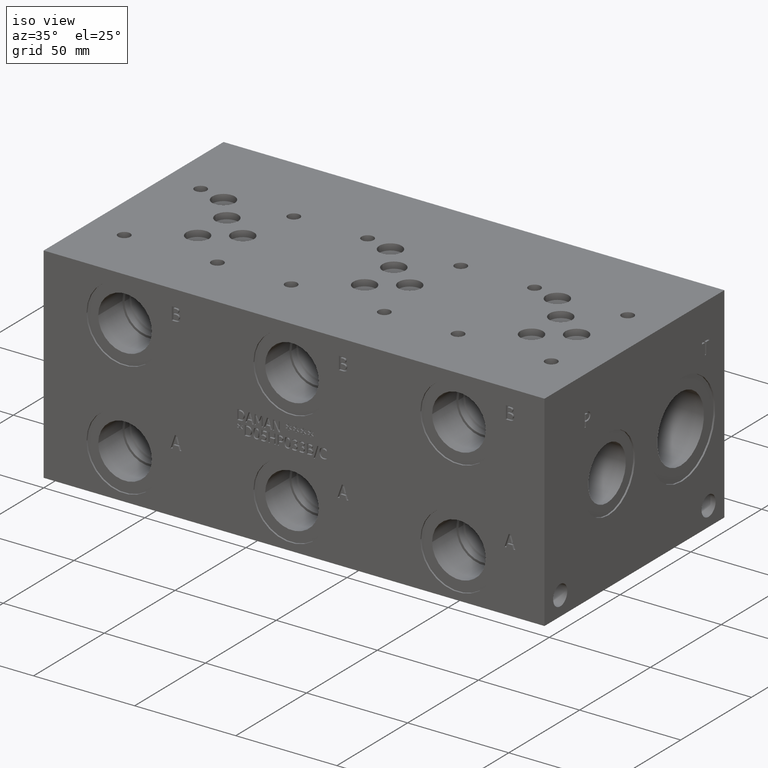
[diagram: clean part render]
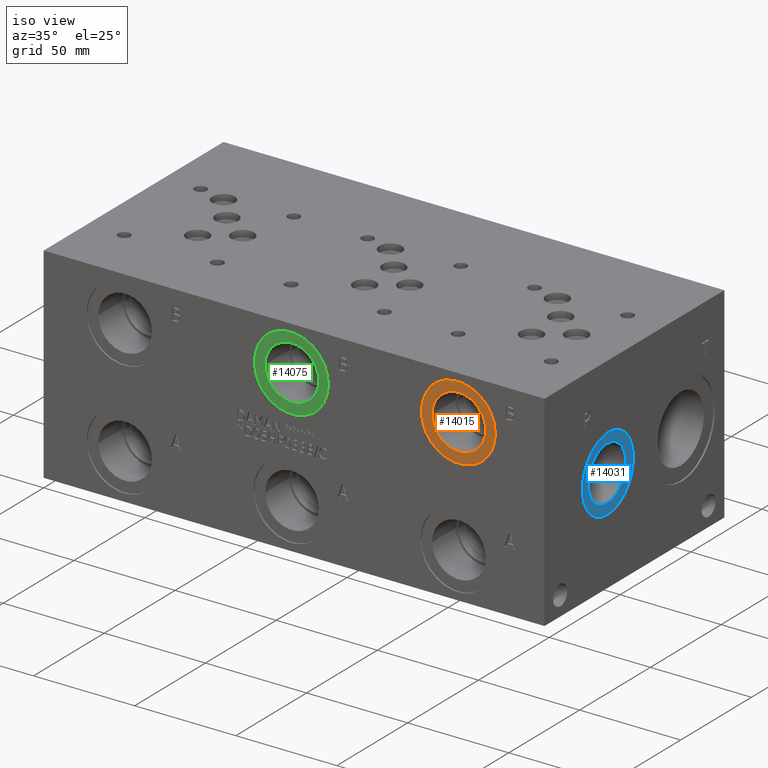
[diagram: same view with three faces highlighted in distinct colors, each labeled with its STEP entity id]
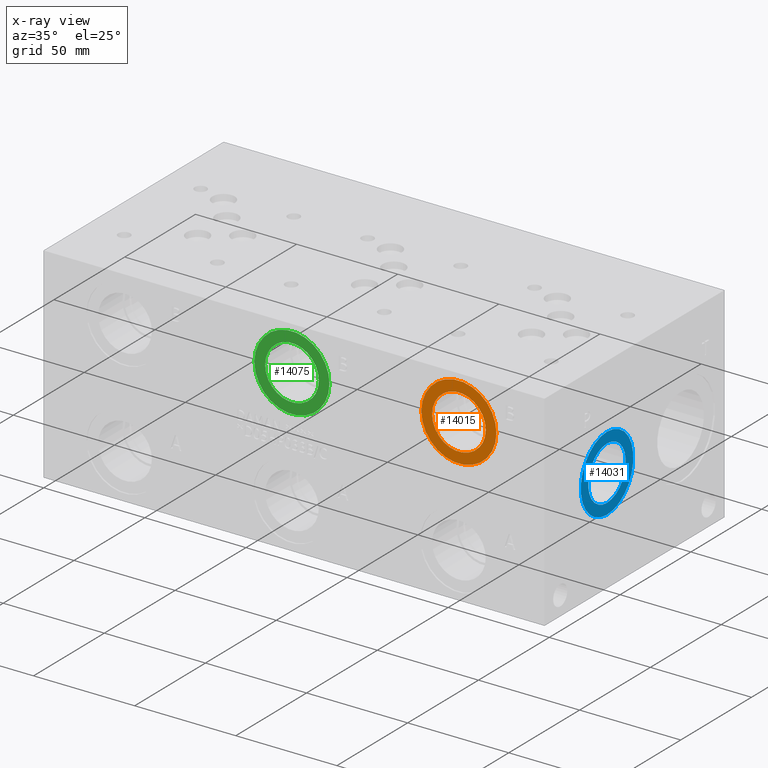
[diagram: x-ray of the same camera — body ghosted, the three highlighted faces saturated]
A machine part, iso view with three faces highlighted in distinct colors.
The next image is the same camera in x-ray (body ghosted, the three faces saturated) — at least one of them is partly hidden behind the body in this view.
Their STEP definitions:

[orange] entity #14015 — the highlighted planar face has unit normal (0, 1, 0).
#409=CIRCLE('',#14635,18.5547);
#410=CIRCLE('',#14636,18.5547);
#411=CIRCLE('',#14638,13.2715);
#412=CIRCLE('',#14639,13.2715);
#1127=FACE_BOUND('',#2545,.T.);
#1747=FACE_OUTER_BOUND('',#2544,.T.);
#2544=EDGE_LOOP('',(#11672,#11673));
#2545=EDGE_LOOP('',(#11674,#11675));
#6326=VERTEX_POINT('',#23699);
#6327=VERTEX_POINT('',#23701);
#6328=VERTEX_POINT('',#23705);
#6329=VERTEX_POINT('',#23706);
#8200=EDGE_CURVE('',#6326,#6327,#409,.T.);
#8201=EDGE_CURVE('',#6327,#6326,#410,.T.);
#8202=EDGE_CURVE('',#6328,#6329,#411,.T.);
#8203=EDGE_CURVE('',#6329,#6328,#412,.T.);
#11672=ORIENTED_EDGE('',*,*,#8201,.F.);
#11673=ORIENTED_EDGE('',*,*,#8200,.F.);
#11674=ORIENTED_EDGE('',*,*,#8202,.T.);
#11675=ORIENTED_EDGE('',*,*,#8203,.T.);
#12892=PLANE('',#14637);
#14015=ADVANCED_FACE('',(#1747,#1127),#12892,.F.);
#14635=AXIS2_PLACEMENT_3D('',#23702,#17079,#17080);
#14636=AXIS2_PLACEMENT_3D('',#23703,#17081,#17082);
#14637=AXIS2_PLACEMENT_3D('',#23704,#17083,#17084);
#14638=AXIS2_PLACEMENT_3D('',#23707,#17085,#17086);
#14639=AXIS2_PLACEMENT_3D('',#23708,#17087,#17088);
#17079=DIRECTION('center_axis',(0.,1.,0.));
#17080=DIRECTION('ref_axis',(1.,0.,0.));
#17081=DIRECTION('center_axis',(0.,1.,0.));
#17082=DIRECTION('ref_axis',(1.,0.,0.));
#17083=DIRECTION('center_axis',(0.,1.,0.));
#17084=DIRECTION('ref_axis',(0.,0.,1.));
#17085=DIRECTION('center_axis',(0.,1.,0.));
#17086=DIRECTION('ref_axis',(1.,0.,0.));
#17087=DIRECTION('center_axis',(0.,1.,0.));
#17088=DIRECTION('ref_axis',(1.,0.,0.));
#23699=CARTESIAN_POINT('',(186.2201,0.7874,79.375));
#23701=CARTESIAN_POINT('',(223.3295,0.7874,79.375));
#23702=CARTESIAN_POINT('Origin',(204.7748,0.7874,79.375));
#23703=CARTESIAN_POINT('Origin',(204.7748,0.7874,79.375));
#23704=CARTESIAN_POINT('Origin',(218.0463,0.7874,79.375));
#23705=CARTESIAN_POINT('',(218.0463,0.7874,79.375));
#23706=CARTESIAN_POINT('',(191.5033,0.7874,79.375));
#23707=CARTESIAN_POINT('Origin',(204.7748,0.7874,79.375));
#23708=CARTESIAN_POINT('Origin',(204.7748,0.7874,79.375));

[blue] entity #14031 — the highlighted planar face has unit normal (-1, 0, 0).
#434=CIRCLE('',#14676,18.5547);
#435=CIRCLE('',#14677,18.5547);
#436=CIRCLE('',#14679,13.2715);
#437=CIRCLE('',#14680,13.2715);
#1131=FACE_BOUND('',#2565,.T.);
#1763=FACE_OUTER_BOUND('',#2564,.T.);
#2564=EDGE_LOOP('',(#11749,#11750));
#2565=EDGE_LOOP('',(#11751,#11752));
#6354=VERTEX_POINT('',#23780);
#6355=VERTEX_POINT('',#23782);
#6356=VERTEX_POINT('',#23786);
#6357=VERTEX_POINT('',#23787);
#8237=EDGE_CURVE('',#6354,#6355,#434,.T.);
#8238=EDGE_CURVE('',#6355,#6354,#435,.T.);
#8239=EDGE_CURVE('',#6356,#6357,#436,.T.);
#8240=EDGE_CURVE('',#6357,#6356,#437,.T.);
#11749=ORIENTED_EDGE('',*,*,#8238,.F.);
#11750=ORIENTED_EDGE('',*,*,#8237,.F.);
#11751=ORIENTED_EDGE('',*,*,#8239,.T.);
#11752=ORIENTED_EDGE('',*,*,#8240,.T.);
#12896=PLANE('',#14678);
#14031=ADVANCED_FACE('',(#1763,#1131),#12896,.F.);
#14676=AXIS2_PLACEMENT_3D('',#23783,#17173,#17174);
#14677=AXIS2_PLACEMENT_3D('',#23784,#17175,#17176);
#14678=AXIS2_PLACEMENT_3D('',#23785,#17177,#17178);
#14679=AXIS2_PLACEMENT_3D('',#23788,#17179,#17180);
#14680=AXIS2_PLACEMENT_3D('',#23789,#17181,#17182);
#17173=DIRECTION('center_axis',(-1.,0.,0.));
#17174=DIRECTION('ref_axis',(0.,0.,1.));
#17175=DIRECTION('center_axis',(-1.,0.,0.));
#17176=DIRECTION('ref_axis',(0.,0.,1.));
#17177=DIRECTION('center_axis',(-1.,0.,0.));
#17178=DIRECTION('ref_axis',(0.,0.,1.));
#17179=DIRECTION('center_axis',(-1.,0.,0.));
#17180=DIRECTION('ref_axis',(0.,0.,1.));
#17181=DIRECTION('center_axis',(-1.,0.,0.));
#17182=DIRECTION('ref_axis',(0.,0.,1.));
#23780=CARTESIAN_POINT('',(246.8626,45.2882,69.3547));
#23782=CARTESIAN_POINT('',(246.8626,45.2882,32.2453));
#23783=CARTESIAN_POINT('Origin',(246.8626,45.2882,50.8));
#23784=CARTESIAN_POINT('Origin',(246.8626,45.2882,50.8));
#23785=CARTESIAN_POINT('Origin',(246.8626,45.2882,37.5285));
#23786=CARTESIAN_POINT('',(246.8626,45.2882,37.5285));
#23787=CARTESIAN_POINT('',(246.8626,45.2882,64.0715));
#23788=CARTESIAN_POINT('Origin',(246.8626,45.2882,50.8));
#23789=CARTESIAN_POINT('Origin',(246.8626,45.2882,50.8));

[green] entity #14075 — the highlighted planar face has unit normal (0, 1, 0).
#507=CIRCLE('',#14793,18.5547);
#508=CIRCLE('',#14794,18.5547);
#509=CIRCLE('',#14796,13.2715);
#510=CIRCLE('',#14797,13.2715);
#1143=FACE_BOUND('',#2621,.T.);
#1807=FACE_OUTER_BOUND('',#2620,.T.);
#2620=EDGE_LOOP('',(#11974,#11975));
#2621=EDGE_LOOP('',(#11976,#11977));
#6432=VERTEX_POINT('',#24007);
#6433=VERTEX_POINT('',#24009);
#6434=VERTEX_POINT('',#24013);
#6435=VERTEX_POINT('',#24014);
#8342=EDGE_CURVE('',#6432,#6433,#507,.T.);
#8343=EDGE_CURVE('',#6433,#6432,#508,.T.);
#8344=EDGE_CURVE('',#6434,#6435,#509,.T.);
#8345=EDGE_CURVE('',#6435,#6434,#510,.T.);
#11974=ORIENTED_EDGE('',*,*,#8343,.F.);
#11975=ORIENTED_EDGE('',*,*,#8342,.F.);
#11976=ORIENTED_EDGE('',*,*,#8344,.T.);
#11977=ORIENTED_EDGE('',*,*,#8345,.T.);
#12908=PLANE('',#14795);
#14075=ADVANCED_FACE('',(#1807,#1143),#12908,.F.);
#14793=AXIS2_PLACEMENT_3D('',#24010,#17439,#17440);
#14794=AXIS2_PLACEMENT_3D('',#24011,#17441,#17442);
#14795=AXIS2_PLACEMENT_3D('',#24012,#17443,#17444);
#14796=AXIS2_PLACEMENT_3D('',#24015,#17445,#17446);
#14797=AXIS2_PLACEMENT_3D('',#24016,#17447,#17448);
#17439=DIRECTION('center_axis',(0.,1.,0.));
#17440=DIRECTION('ref_axis',(1.,0.,0.));
#17441=DIRECTION('center_axis',(0.,1.,0.));
#17442=DIRECTION('ref_axis',(1.,0.,0.));
#17443=DIRECTION('center_axis',(0.,1.,0.));
#17444=DIRECTION('ref_axis',(0.,0.,1.));
#17445=DIRECTION('center_axis',(0.,1.,0.));
#17446=DIRECTION('ref_axis',(1.,0.,0.));
#17447=DIRECTION('center_axis',(0.,1.,0.));
#17448=DIRECTION('ref_axis',(1.,0.,0.));
#24007=CARTESIAN_POINT('',(103.6701,0.7874,79.375));
#24009=CARTESIAN_POINT('',(140.7795,0.7874,79.375));
#24010=CARTESIAN_POINT('Origin',(122.2248,0.7874,79.375));
#24011=CARTESIAN_POINT('Origin',(122.2248,0.7874,79.375));
#24012=CARTESIAN_POINT('Origin',(135.4963,0.7874,79.375));
#24013=CARTESIAN_POINT('',(135.4963,0.7874,79.375));
#24014=CARTESIAN_POINT('',(108.9533,0.7874,79.375));
#24015=CARTESIAN_POINT('Origin',(122.2248,0.7874,79.375));
#24016=CARTESIAN_POINT('Origin',(122.2248,0.7874,79.375));